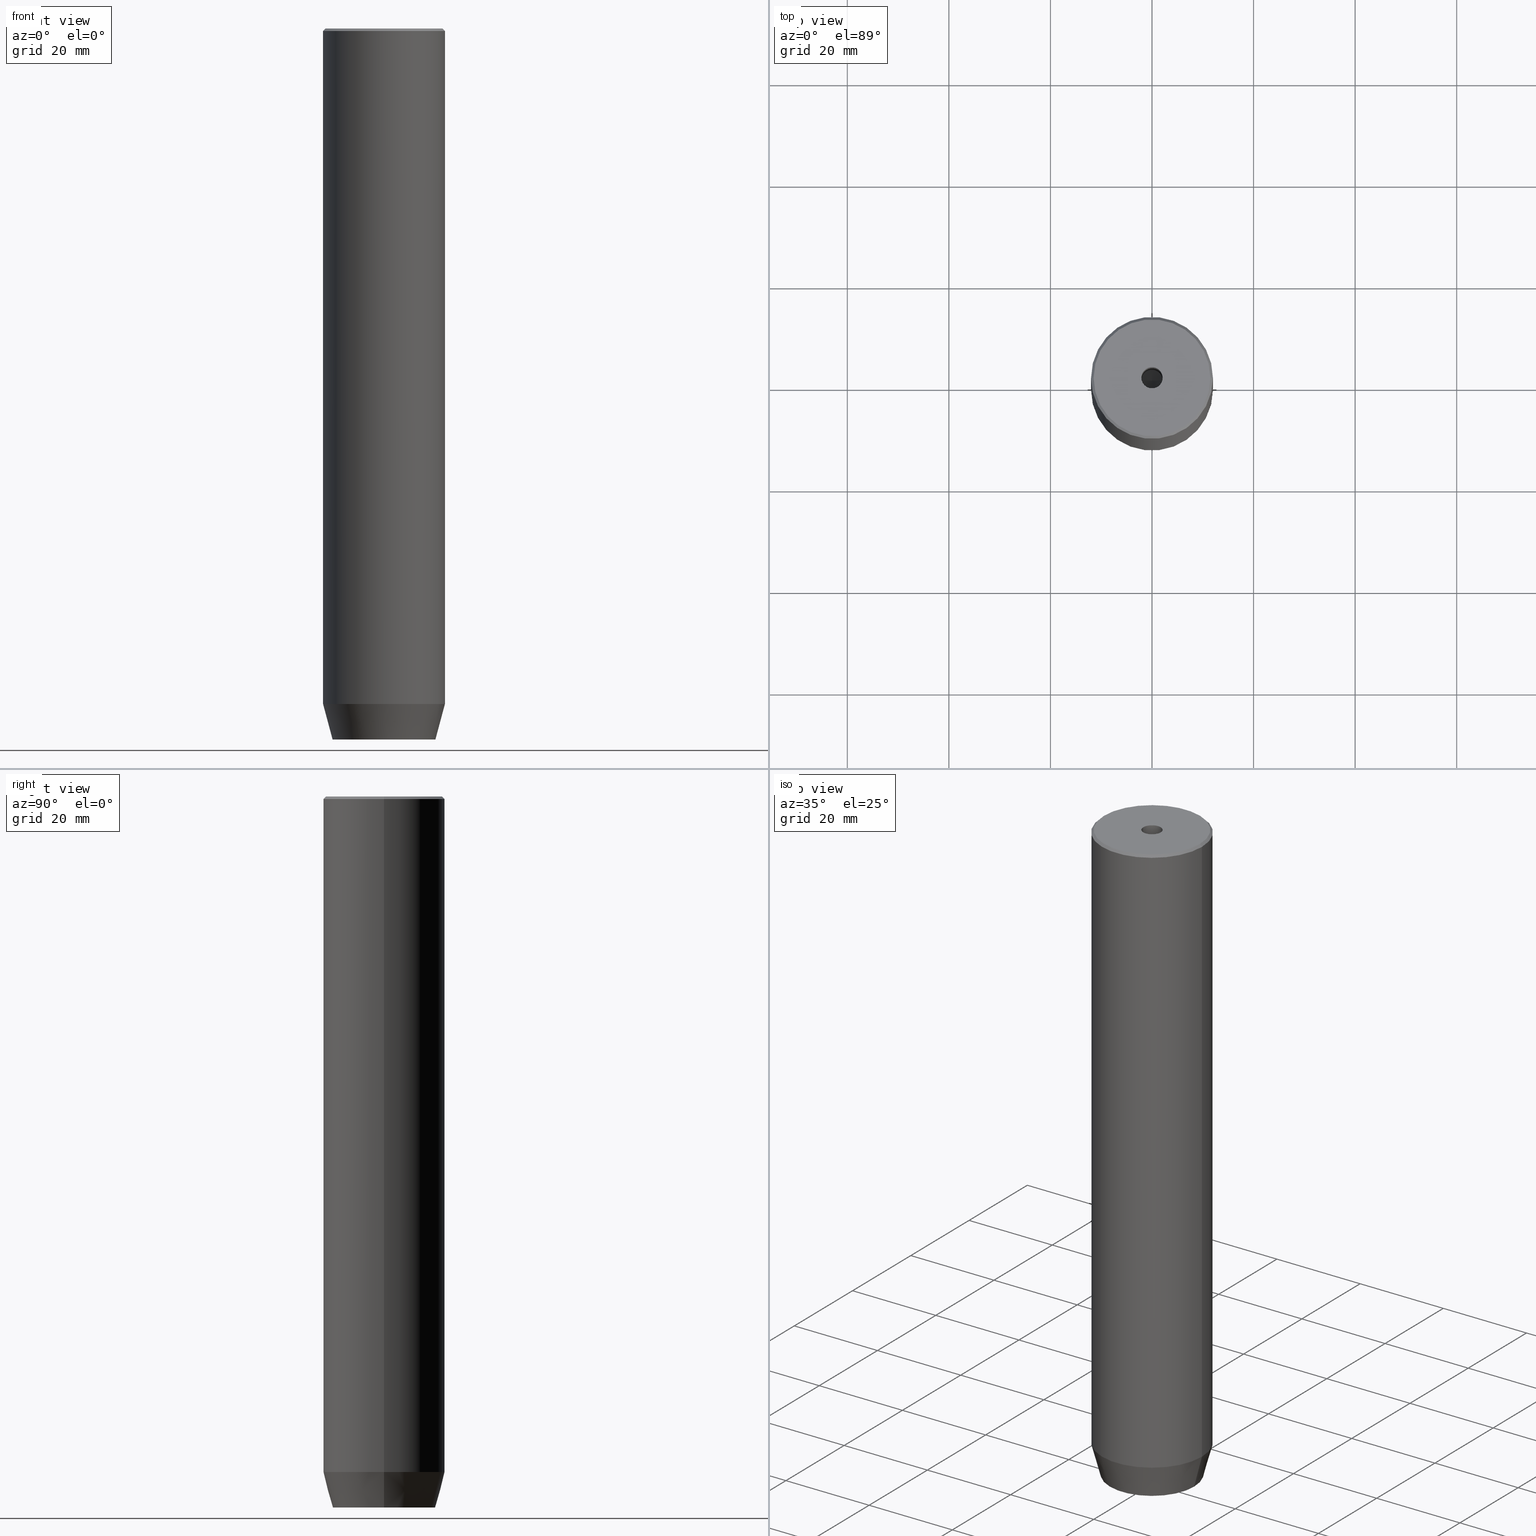
[diagram: canonical four-view strip — front | top / right | iso, engineering-drawing reading convention]
A machine part, canonical four-view strip (front | top / right | iso — engineering-drawing reading convention). The complete STEP part file that produces these views, byte-faithful:
ISO-10303-21;
HEADER;
FILE_DESCRIPTION (( 'STEP AP203' ),
    '1' );
FILE_NAME ('ad3d.STEP',
    '2024-01-02T17:15:39',
    ( '' ),
    ( '' ),
    'SwSTEP 2.0',
    'SolidWorks 2019',
    '' );
FILE_SCHEMA (( 'CONFIG_CONTROL_DESIGN' ));
ENDSEC;

DATA;
#1 =( NAMED_UNIT ( * ) PLANE_ANGLE_UNIT ( ) SI_UNIT ( $, .RADIAN. ) );
#2 = DIRECTION ( 'NONE',  ( 0.8660254037844387076, 0.5000000000000001110, 0.000000000000000000 ) ) ;
#3 = UNCERTAINTY_MEASURE_WITH_UNIT (LENGTH_MEASURE( 1.000000000000000082E-05 ), #266, 'distance_accuracy_value', 'NONE');
#4 = DATE_AND_TIME ( #491, #451 ) ;
#5 = CARTESIAN_POINT ( 'NONE',  ( 0.000000000000000000, 0.000000000000000000, 0.000000000000000000 ) ) ;
#6 = CYLINDRICAL_SURFACE ( 'NONE', #587, 2.099999999999996980 ) ;
#7 = EDGE_CURVE ( 'NONE', #310, #391, #514, .T. ) ;
#8 = VECTOR ( 'NONE', #570, 1000.000000000000000 ) ;
#9 = ORIENTED_EDGE ( 'NONE', *, *, #495, .F. ) ;
#10 = DIRECTION ( 'NONE',  ( 0.000000000000000000, 0.000000000000000000, -1.000000000000000000 ) ) ;
#11 = EDGE_CURVE ( 'NONE', #70, #80, #253, .T. ) ;
#12 = FACE_OUTER_BOUND ( 'NONE', #308, .T. ) ;
#13 = ORIENTED_EDGE ( 'NONE', *, *, #138, .T. ) ;
#14 = DIRECTION ( 'NONE',  ( -1.000000000000000000, 0.000000000000000000, 0.000000000000000000 ) ) ;
#15 = VECTOR ( 'NONE', #540, 1000.000000000000000 ) ;
#16 = CC_DESIGN_PERSON_AND_ORGANIZATION_ASSIGNMENT ( #270, #456, ( #109 ) ) ;
#17 = FACE_OUTER_BOUND ( 'NONE', #407, .T. ) ;
#18 = CARTESIAN_POINT ( 'NONE',  ( 12.00000000000000000, 0.000000000000000000, -0.5000000000000056621 ) ) ;
#19 = VERTEX_POINT ( 'NONE', #143 ) ;
#20 = DIRECTION ( 'NONE',  ( -0.000000000000000000, -0.000000000000000000, 1.000000000000000000 ) ) ;
#21 = DIRECTION ( 'NONE',  ( -0.8571673007021113344, 1.049727191138617463E-16, 0.5150380749100558209 ) ) ;
#22 = CIRCLE ( 'NONE', #196, 2.099999999999998757 ) ;
#23 = CARTESIAN_POINT ( 'NONE',  ( -4.000000000000000000, -2.309401076758503368, -137.2000000000000171 ) ) ;
#24 = VECTOR ( 'NONE', #299, 1000.000000000000114 ) ;
#25 = ADVANCED_FACE ( 'NONE', ( #45 ), #94, .T. ) ;
#26 = DIRECTION ( 'NONE',  ( 1.000000000000000000, 0.000000000000000000, 0.000000000000000000 ) ) ;
#27 = ORIENTED_EDGE ( 'NONE', *, *, #321, .F. ) ;
#28 = ORIENTED_EDGE ( 'NONE', *, *, #445, .F. ) ;
#29 = DIRECTION ( 'NONE',  ( -0.000000000000000000, -0.000000000000000000, -1.000000000000000000 ) ) ;
#30 = ORIENTED_EDGE ( 'NONE', *, *, #46, .T. ) ;
#31 = ORIENTED_EDGE ( 'NONE', *, *, #172, .F. ) ;
#32 = ORIENTED_EDGE ( 'NONE', *, *, #495, .T. ) ;
#33 = ADVANCED_FACE ( 'NONE', ( #329 ), #226, .F. ) ;
#34 = DIRECTION ( 'NONE',  ( 1.000000000000000000, 0.000000000000000000, 0.000000000000000000 ) ) ;
#35 = CARTESIAN_POINT ( 'NONE',  ( 0.000000000000000000, 0.000000000000000000, -1.990051048614449116E-16 ) ) ;
#36 = CARTESIAN_POINT ( 'NONE',  ( 11.49999999999999467, 1.438959988998139766E-15, 0.000000000000000000 ) ) ;
#37 = APPROVAL_DATE_TIME ( #578, #389 ) ;
#38 = DIRECTION ( 'NONE',  ( 1.000000000000000000, 0.000000000000000000, 0.000000000000000000 ) ) ;
#39 = CARTESIAN_POINT ( 'NONE',  ( -4.000000000000000000, 0.000000000000000000, -140.0000000000000000 ) ) ;
#40 = FACE_OUTER_BOUND ( 'NONE', #580, .T. ) ;
#41 = CARTESIAN_POINT ( 'NONE',  ( 2.000000000000000444, 3.464101615137754386, -140.0000000000000000 ) ) ;
#42 = DIRECTION ( 'NONE',  ( 0.5000000000000003331, -0.8660254037844385966, 0.000000000000000000 ) ) ;
#43 = ADVANCED_FACE ( 'NONE', ( #566 ), #509, .F. ) ;
#44 = LINE ( 'NONE', #180, #410 ) ;
#45 = FACE_OUTER_BOUND ( 'NONE', #326, .T. ) ;
#46 = EDGE_CURVE ( 'NONE', #250, #470, #100, .T. ) ;
#47 = DIRECTION ( 'NONE',  ( -1.000000000000000000, 0.000000000000000000, 0.000000000000000000 ) ) ;
#48 = AXIS2_PLACEMENT_3D ( 'NONE', #150, #274, #521 ) ;
#49 = APPROVAL_PERSON_ORGANIZATION ( #317, #389, #121 ) ;
#50 = CARTESIAN_POINT ( 'NONE',  ( -2.000000000000000888, -3.464101615137754386, -137.2000000000000171 ) ) ;
#51 = DIRECTION ( 'NONE',  ( 1.000000000000000000, 0.000000000000000000, 0.000000000000000000 ) ) ;
#52 = CARTESIAN_POINT ( 'NONE',  ( -4.000000000000000000, 2.309401076758503368, -137.2000000000000171 ) ) ;
#53 = CARTESIAN_POINT ( 'NONE',  ( 2.099999999999996980, 0.000000000000000000, 0.000000000000000000 ) ) ;
#54 = EDGE_LOOP ( 'NONE', ( #207, #30, #488, #436, #186, #429 ) ) ;
#55 = VECTOR ( 'NONE', #195, 1000.000000000000000 ) ;
#56 = PRODUCT_DEFINITION_FORMATION_WITH_SPECIFIED_SOURCE ( 'LIBOVOLN�', '', #213, .NOT_KNOWN. ) ;
#57 = CARTESIAN_POINT ( 'NONE',  ( -2.099999999999996980, 2.571758278209438013E-16, 0.000000000000000000 ) ) ;
#58 = DIRECTION ( 'NONE',  ( 1.000000000000000000, 0.000000000000000000, 0.000000000000000000 ) ) ;
#59 = EDGE_CURVE ( 'NONE', #313, #546, #572, .T. ) ;
#60 = CARTESIAN_POINT ( 'NONE',  ( -4.000000000000000000, 2.309401076758503368, -137.2000000000000171 ) ) ;
#61 = EDGE_CURVE ( 'NONE', #494, #375, #242, .T. ) ;
#62 = ORIENTED_EDGE ( 'NONE', *, *, #366, .F. ) ;
#63 = ADVANCED_BREP_SHAPE_REPRESENTATION ( 'ad3d', ( #114, #403 ), #468 ) ;
#64 = CIRCLE ( 'NONE', #211, 12.00000000000000000 ) ;
#65 = CARTESIAN_POINT ( 'NONE',  ( 0.000000000000000000, 0.000000000000000000, -30.00000000000000000 ) ) ;
#66 = EDGE_LOOP ( 'NONE', ( #9, #433, #343, #377 ) ) ;
#67 = CARTESIAN_POINT ( 'NONE',  ( 2.099999999999994760, 0.000000000000000000, -30.00000000000000000 ) ) ;
#68 = CC_DESIGN_DATE_AND_TIME_ASSIGNMENT ( #4, #79, ( #483 ) ) ;
#69 = CARTESIAN_POINT ( 'NONE',  ( 0.000000000000000000, 0.000000000000000000, -133.0000000000000000 ) ) ;
#70 = VERTEX_POINT ( 'NONE', #18 ) ;
#71 = ORIENTED_EDGE ( 'NONE', *, *, #513, .T. ) ;
#72 = AXIS2_PLACEMENT_3D ( 'NONE', #309, #396, #586 ) ;
#73 = CARTESIAN_POINT ( 'NONE',  ( 0.000000000000000000, 10.12435565298213547, -140.0000000000000000 ) ) ;
#74 = APPROVAL_PERSON_ORGANIZATION ( #498, #233, #285 ) ;
#75 = CARTESIAN_POINT ( 'NONE',  ( 4.000000000000000000, -2.309401076758502480, -140.0000000000000000 ) ) ;
#76 = CARTESIAN_POINT ( 'NONE',  ( -2.000000000000000000, 3.464101615137754830, -137.2000000000000171 ) ) ;
#77 = APPROVAL_ROLE ( '' ) ;
#78 = CARTESIAN_POINT ( 'NONE',  ( -2.099999999999994760, 2.571758278209435054E-16, -30.00000000000000000 ) ) ;
#79 = DATE_TIME_ROLE ( 'classification_date' ) ;
#80 = VERTEX_POINT ( 'NONE', #200 ) ;
#81 = DIRECTION ( 'NONE',  ( 1.000000000000000000, 0.000000000000000000, 0.000000000000000000 ) ) ;
#82 = AXIS2_PLACEMENT_3D ( 'NONE', #124, #223, #406 ) ;
#83 = CYLINDRICAL_SURFACE ( 'NONE', #104, 12.00000000000000000 ) ;
#84 = ORIENTED_EDGE ( 'NONE', *, *, #339, .F. ) ;
#85 = EDGE_CURVE ( 'NONE', #80, #70, #548, .T. ) ;
#86 = EDGE_CURVE ( 'NONE', #539, #352, #510, .T. ) ;
#87 = DIRECTION ( 'NONE',  ( 0.000000000000000000, -1.000000000000000000, 0.000000000000000000 ) ) ;
#88 = DIRECTION ( 'NONE',  ( -0.2588190451025213501, 3.169619151431772337E-17, 0.9659258262890680902 ) ) ;
#89 = VECTOR ( 'NONE', #432, 1000.000000000000000 ) ;
#90 = CARTESIAN_POINT ( 'NONE',  ( 0.000000000000000000, 0.000000000000000000, 0.000000000000000000 ) ) ;
#91 = COORDINATED_UNIVERSAL_TIME_OFFSET ( 1, 0, .AHEAD. ) ;
#92 = FACE_OUTER_BOUND ( 'NONE', #128, .T. ) ;
#93 = DIRECTION ( 'NONE',  ( 0.8660254037844387076, 0.5000000000000001110, 0.000000000000000000 ) ) ;
#94 = CONICAL_SURFACE ( 'NONE', #437, 12.00000000000000000, 0.2617993877991500740 ) ;
#95 = AXIS2_PLACEMENT_3D ( 'NONE', #568, #565, #58 ) ;
#96 = CARTESIAN_POINT ( 'NONE',  ( -2.000000000000000888, -3.464101615137754386, -137.2000000000000171 ) ) ;
#97 = ADVANCED_FACE ( 'NONE', ( #447 ), #217, .F. ) ;
#98 = CYLINDRICAL_SURFACE ( 'NONE', #393, 12.00000000000000000 ) ;
#99 = ORIENTED_EDGE ( 'NONE', *, *, #185, .T. ) ;
#100 = LINE ( 'NONE', #293, #556 ) ;
#101 = DIRECTION ( 'NONE',  ( 0.8571673007021113344, 0.000000000000000000, 0.5150380749100558209 ) ) ;
#102 = ORIENTED_EDGE ( 'NONE', *, *, #126, .T. ) ;
#103 = DIRECTION ( 'NONE',  ( 0.000000000000000000, 1.000000000000000000, 0.000000000000000000 ) ) ;
#104 = AXIS2_PLACEMENT_3D ( 'NONE', #119, #306, #482 ) ;
#105 = AXIS2_PLACEMENT_3D ( 'NONE', #90, #142, #47 ) ;
#106 = VERTEX_POINT ( 'NONE', #365 ) ;
#107 = LINE ( 'NONE', #427, #24 ) ;
#108 = LOCAL_TIME ( 18, 15, 39.00000000000000000, #307 ) ;
#109 = PRODUCT_DEFINITION ( 'NEZN�M�', '', #56, #320 ) ;
#110 = VERTEX_POINT ( 'NONE', #440 ) ;
#111 = DIRECTION ( 'NONE',  ( 0.000000000000000000, 0.000000000000000000, -1.000000000000000000 ) ) ;
#112 = PLANE ( 'NONE',  #450 ) ;
#113 = ORIENTED_EDGE ( 'NONE', *, *, #422, .F. ) ;
#114 = MANIFOLD_SOLID_BREP ( 'Vrt�k z�vitn�ku pro M5 z�vit1', #425 ) ;
#115 = ORIENTED_EDGE ( 'NONE', *, *, #238, .F. ) ;
#116 = ORIENTED_EDGE ( 'NONE', *, *, #564, .F. ) ;
#117 = PERSON_AND_ORGANIZATION_ROLE ( 'creator' ) ;
#118 = EDGE_LOOP ( 'NONE', ( #462, #526, #507, #573 ) ) ;
#119 = CARTESIAN_POINT ( 'NONE',  ( 0.000000000000000000, 0.000000000000000000, 0.000000000000000000 ) ) ;
#120 = ORIENTED_EDGE ( 'NONE', *, *, #216, .F. ) ;
#121 = APPROVAL_ROLE ( '' ) ;
#122 = EDGE_CURVE ( 'NONE', #110, #399, #225, .T. ) ;
#123 = AXIS2_PLACEMENT_3D ( 'NONE', #231, #14, #376 ) ;
#124 = CARTESIAN_POINT ( 'NONE',  ( 0.000000000000000000, 0.000000000000000000, -30.00000000000000000 ) ) ;
#125 = ORIENTED_EDGE ( 'NONE', *, *, #61, .T. ) ;
#126 = EDGE_CURVE ( 'NONE', #399, #173, #405, .T. ) ;
#127 = PRODUCT_RELATED_PRODUCT_CATEGORY ( 'detail', '', ( #213 ) ) ;
#128 = EDGE_LOOP ( 'NONE', ( #269, #442, #584, #171 ) ) ;
#129 = PERSON_AND_ORGANIZATION ( #247, #331 ) ;
#130 = DIRECTION ( 'NONE',  ( -0.7071067811865474617, 0.000000000000000000, -0.7071067811865474617 ) ) ;
#131 =( NAMED_UNIT ( * ) SI_UNIT ( $, .STERADIAN. ) SOLID_ANGLE_UNIT ( ) );
#132 = ORIENTED_EDGE ( 'NONE', *, *, #505, .F. ) ;
#133 = CARTESIAN_POINT ( 'NONE',  ( -2.000000000000000000, 3.464101615137754830, -137.2000000000000171 ) ) ;
#134 = DATE_AND_TIME ( #360, #576 ) ;
#135 = AXIS2_PLACEMENT_3D ( 'NONE', #188, #547, #400 ) ;
#136 = FACE_OUTER_BOUND ( 'NONE', #118, .T. ) ;
#137 = CIRCLE ( 'NONE', #529, 2.099999999999994760 ) ;
#138 = EDGE_CURVE ( 'NONE', #356, #19, #187, .T. ) ;
#139 = ADVANCED_FACE ( 'NONE', ( #409 ), #6, .F. ) ;
#140 = FACE_OUTER_BOUND ( 'NONE', #54, .T. ) ;
#141 = CARTESIAN_POINT ( 'NONE',  ( 4.000000000000000000, 2.309401076758503368, -140.0000000000000000 ) ) ;
#142 = DIRECTION ( 'NONE',  ( 0.000000000000000000, 0.000000000000000000, -1.000000000000000000 ) ) ;
#143 = CARTESIAN_POINT ( 'NONE',  ( 10.12435565298213547, 0.000000000000000000, -140.0000000000000000 ) ) ;
#144 = VECTOR ( 'NONE', #218, 1000.000000000000000 ) ;
#145 = ORIENTED_EDGE ( 'NONE', *, *, #536, .F. ) ;
#146 = APPROVAL_PERSON_ORGANIZATION ( #452, #152, #77 ) ;
#147 = DIRECTION ( 'NONE',  ( 1.000000000000000000, 0.000000000000000000, 0.000000000000000000 ) ) ;
#148 = DIRECTION ( 'NONE',  ( 1.000000000000000000, 0.000000000000000000, 0.000000000000000000 ) ) ;
#149 = CARTESIAN_POINT ( 'NONE',  ( -12.00000000000000000, 1.469576158976823947E-15, 0.000000000000000000 ) ) ;
#150 = CARTESIAN_POINT ( 'NONE',  ( 4.000000000000000000, 0.000000000000000000, -137.2000000000000171 ) ) ;
#151 = EDGE_CURVE ( 'NONE', #19, #356, #402, .T. ) ;
#152 = APPROVAL ( #215, 'NEUR�EN�' ) ;
#153 = CIRCLE ( 'NONE', #135, 11.49999999999999467 ) ;
#154 = AXIS2_PLACEMENT_3D ( 'NONE', #5, #508, #148 ) ;
#155 = CC_DESIGN_SECURITY_CLASSIFICATION ( #483, ( #56 ) ) ;
#156 = ORIENTED_EDGE ( 'NONE', *, *, #304, .F. ) ;
#157 = LINE ( 'NONE', #67, #298 ) ;
#158 = CARTESIAN_POINT ( 'NONE',  ( 4.336808689942017736E-16, -4.618802153517006737, -140.0000000000000000 ) ) ;
#159 = ORIENTED_EDGE ( 'NONE', *, *, #46, .F. ) ;
#160 = CARTESIAN_POINT ( 'NONE',  ( -4.000000000000000000, 0.000000000000000000, -137.2000000000000171 ) ) ;
#161 = LINE ( 'NONE', #23, #517 ) ;
#162 = CARTESIAN_POINT ( 'NONE',  ( 4.336808689942017736E-16, -4.618802153517006737, -137.2000000000000171 ) ) ;
#163 = CARTESIAN_POINT ( 'NONE',  ( 0.000000000000000000, 0.000000000000000000, -0.5000000000000056621 ) ) ;
#164 = DIRECTION ( 'NONE',  ( 1.000000000000000000, 0.000000000000000000, 0.000000000000000000 ) ) ;
#165 = DIRECTION ( 'NONE',  ( 0.8660254037844385966, -0.5000000000000001110, 0.000000000000000000 ) ) ;
#166 = DIRECTION ( 'NONE',  ( 0.000000000000000000, 0.000000000000000000, -1.000000000000000000 ) ) ;
#167 = EDGE_LOOP ( 'NONE', ( #28, #560, #209, #264 ) ) ;
#168 = DIRECTION ( 'NONE',  ( 1.000000000000000000, 0.000000000000000000, 0.000000000000000000 ) ) ;
#169 = MECHANICAL_CONTEXT ( 'NONE', #284, 'mechanical' ) ;
#170 = CARTESIAN_POINT ( 'NONE',  ( 2.000000000000000888, -3.464101615137754386, -137.2000000000000171 ) ) ;
#171 = ORIENTED_EDGE ( 'NONE', *, *, #185, .F. ) ;
#172 = EDGE_CURVE ( 'NONE', #581, #173, #357, .T. ) ;
#173 = VERTEX_POINT ( 'NONE', #75 ) ;
#174 = ORIENTED_EDGE ( 'NONE', *, *, #193, .F. ) ;
#175 = AXIS2_PLACEMENT_3D ( 'NONE', #475, #435, #212 ) ;
#176 = SECURITY_CLASSIFICATION_LEVEL ( 'unclassified' ) ;
#177 = CARTESIAN_POINT ( 'NONE',  ( 12.00000000000000000, 0.000000000000000000, -133.0000000000000000 ) ) ;
#178 = ORIENTED_EDGE ( 'NONE', *, *, #85, .T. ) ;
#179 = ORIENTED_EDGE ( 'NONE', *, *, #122, .T. ) ;
#180 = CARTESIAN_POINT ( 'NONE',  ( -11.49999999999999467, 0.000000000000000000, 0.000000000000000000 ) ) ;
#181 = ORIENTED_EDGE ( 'NONE', *, *, #397, .T. ) ;
#182 = CARTESIAN_POINT ( 'NONE',  ( 0.000000000000000000, 0.000000000000000000, 0.000000000000000000 ) ) ;
#183 = DIRECTION ( 'NONE',  ( 0.000000000000000000, -1.000000000000000000, 0.000000000000000000 ) ) ;
#184 = DIRECTION ( 'NONE',  ( 1.000000000000000000, 0.000000000000000000, 0.000000000000000000 ) ) ;
#185 = EDGE_CURVE ( 'NONE', #292, #80, #44, .T. ) ;
#186 = ORIENTED_EDGE ( 'NONE', *, *, #505, .T. ) ;
#187 = CIRCLE ( 'NONE', #316, 10.12435565298213547 ) ;
#188 = CARTESIAN_POINT ( 'NONE',  ( 0.000000000000000000, 0.000000000000000000, 0.000000000000000000 ) ) ;
#189 = VECTOR ( 'NONE', #325, 1000.000000000000000 ) ;
#190 = CALENDAR_DATE ( 2024, 2, 1 ) ;
#191 = LINE ( 'NONE', #53, #189 ) ;
#192 = DIRECTION ( 'NONE',  ( -0.5000000000000003331, -0.8660254037844385966, 0.000000000000000000 ) ) ;
#193 = EDGE_CURVE ( 'NONE', #352, #250, #497, .T. ) ;
#194 = EDGE_CURVE ( 'NONE', #19, #494, #261, .T. ) ;
#195 = DIRECTION ( 'NONE',  ( -0.000000000000000000, -0.000000000000000000, 1.000000000000000000 ) ) ;
#196 = AXIS2_PLACEMENT_3D ( 'NONE', #263, #258, #81 ) ;
#197 = AXIS2_PLACEMENT_3D ( 'NONE', #73, #166, #349 ) ;
#198 = SHAPE_DEFINITION_REPRESENTATION ( #504, #63 ) ;
#199 = LINE ( 'NONE', #57, #575 ) ;
#200 = CARTESIAN_POINT ( 'NONE',  ( -12.00000000000000000, 1.469576158976823947E-15, -0.5000000000000056621 ) ) ;
#201 = EDGE_CURVE ( 'NONE', #106, #418, #318, .T. ) ;
#202 = LINE ( 'NONE', #552, #557 ) ;
#203 = PLANE ( 'NONE',  #95 ) ;
#204 = VECTOR ( 'NONE', #531, 1000.000000000000000 ) ;
#205 = CARTESIAN_POINT ( 'NONE',  ( -4.000000000000000000, -2.309401076758503368, -137.2000000000000171 ) ) ;
#206 = FACE_BOUND ( 'NONE', #582, .T. ) ;
#207 = ORIENTED_EDGE ( 'NONE', *, *, #193, .T. ) ;
#208 = CARTESIAN_POINT ( 'NONE',  ( 0.000000000000000000, 0.000000000000000000, 0.000000000000000000 ) ) ;
#209 = ORIENTED_EDGE ( 'NONE', *, *, #238, .T. ) ;
#210 = ORIENTED_EDGE ( 'NONE', *, *, #469, .T. ) ;
#211 = AXIS2_PLACEMENT_3D ( 'NONE', #506, #417, #147 ) ;
#212 = DIRECTION ( 'NONE',  ( 1.000000000000000000, 0.000000000000000000, 0.000000000000000000 ) ) ;
#213 = PRODUCT ( 'ad3d', 'ad3d', '', ( #169 ) ) ;
#214 = DIRECTION ( 'NONE',  ( -0.000000000000000000, -0.000000000000000000, 1.000000000000000000 ) ) ;
#215 = APPROVAL_STATUS ( 'not_yet_approved' ) ;
#216 = EDGE_CURVE ( 'NONE', #292, #246, #153, .T. ) ;
#217 = PLANE ( 'NONE',  #449 ) ;
#218 = DIRECTION ( 'NONE',  ( 0.8660254037844385966, -0.5000000000000001110, 0.000000000000000000 ) ) ;
#219 = APPLICATION_PROTOCOL_DEFINITION ( 'international standard', 'config_control_design', 1994, #284 ) ;
#220 = AXIS2_PLACEMENT_3D ( 'NONE', #65, #245, #26 ) ;
#221 = DIRECTION ( 'NONE',  ( -0.8660254037844385966, -0.4999999999999999445, 0.000000000000000000 ) ) ;
#222 = ORIENTED_EDGE ( 'NONE', *, *, #275, .T. ) ;
#223 = DIRECTION ( 'NONE',  ( -0.000000000000000000, -0.000000000000000000, 1.000000000000000000 ) ) ;
#224 = CARTESIAN_POINT ( 'NONE',  ( 0.000000000000000000, 0.000000000000000000, -133.0000000000000000 ) ) ;
#225 = LINE ( 'NONE', #41, #144 ) ;
#226 = CYLINDRICAL_SURFACE ( 'NONE', #502, 2.099999999999996980 ) ;
#227 = VERTEX_POINT ( 'NONE', #78 ) ;
#228 = CARTESIAN_POINT ( 'NONE',  ( 0.000000000000000000, 0.000000000000000000, -137.2000000000000171 ) ) ;
#229 = AXIS2_PLACEMENT_3D ( 'NONE', #281, #10, #464 ) ;
#230 = ORIENTED_EDGE ( 'NONE', *, *, #513, .F. ) ;
#231 = CARTESIAN_POINT ( 'NONE',  ( -4.000000000000000000, 0.000000000000000000, -137.2000000000000171 ) ) ;
#232 = ADVANCED_FACE ( 'NONE', ( #353 ), #83, .T. ) ;
#233 = APPROVAL ( #511, 'NEUR�EN�' ) ;
#234 = LINE ( 'NONE', #458, #382 ) ;
#235 = ORIENTED_EDGE ( 'NONE', *, *, #561, .T. ) ;
#236 = CARTESIAN_POINT ( 'NONE',  ( -4.000000000000000000, 2.309401076758503368, -140.0000000000000000 ) ) ;
#237 = DIRECTION ( 'NONE',  ( -0.000000000000000000, -0.000000000000000000, 1.000000000000000000 ) ) ;
#238 = EDGE_CURVE ( 'NONE', #391, #310, #22, .T. ) ;
#239 = DIRECTION ( 'NONE',  ( -0.000000000000000000, -0.000000000000000000, 1.000000000000000000 ) ) ;
#240 = FACE_OUTER_BOUND ( 'NONE', #534, .T. ) ;
#241 = FACE_OUTER_BOUND ( 'NONE', #280, .T. ) ;
#242 = CIRCLE ( 'NONE', #276, 12.00000000000000000 ) ;
#243 = AXIS2_PLACEMENT_3D ( 'NONE', #69, #251, #34 ) ;
#244 = ORIENTED_EDGE ( 'NONE', *, *, #441, .T. ) ;
#245 = DIRECTION ( 'NONE',  ( -0.000000000000000000, -0.000000000000000000, 1.000000000000000000 ) ) ;
#246 = VERTEX_POINT ( 'NONE', #36 ) ;
#247 = PERSON ( 'NEUR�EN�', 'NEUR�EN�', 'NEUR�EN�', ('NEUR�EN�'), ('NEUR�EN�'), ('NEUR�EN�') ) ;
#248 = CARTESIAN_POINT ( 'NONE',  ( 4.000000000000000000, 2.309401076758503368, -137.2000000000000171 ) ) ;
#249 = ORIENTED_EDGE ( 'NONE', *, *, #11, .F. ) ;
#250 = VERTEX_POINT ( 'NONE', #583 ) ;
#251 = DIRECTION ( 'NONE',  ( -0.000000000000000000, -0.000000000000000000, 1.000000000000000000 ) ) ;
#252 = ORIENTED_EDGE ( 'NONE', *, *, #408, .T. ) ;
#253 = CIRCLE ( 'NONE', #175, 12.00000000000000000 ) ;
#254 = CONICAL_SURFACE ( 'NONE', #229, 11.49999999999999467, 0.7853981633974482790 ) ;
#255 = ADVANCED_FACE ( 'NONE', ( #136 ), #543, .F. ) ;
#256 = CONICAL_SURFACE ( 'NONE', #220, 2.099999999999994760, 1.029744258676652535 ) ;
#257 = ADVANCED_FACE ( 'NONE', ( #453 ), #411, .F. ) ;
#258 = DIRECTION ( 'NONE',  ( -0.000000000000000000, -0.000000000000000000, 1.000000000000000000 ) ) ;
#259 = ORIENTED_EDGE ( 'NONE', *, *, #469, .F. ) ;
#260 = APPROVAL_STATUS ( 'not_yet_approved' ) ;
#261 = LINE ( 'NONE', #177, #15 ) ;
#262 = PERSON_AND_ORGANIZATION ( #247, #331 ) ;
#263 = CARTESIAN_POINT ( 'NONE',  ( 0.000000000000000000, 0.000000000000000000, -1.990051048614449116E-16 ) ) ;
#264 = ORIENTED_EDGE ( 'NONE', *, *, #408, .F. ) ;
#265 = VECTOR ( 'NONE', #87, 1000.000000000000000 ) ;
#266 =( LENGTH_UNIT ( ) NAMED_UNIT ( * ) SI_UNIT ( .MILLI., .METRE. ) );
#267 = VECTOR ( 'NONE', #21, 1000.000000000000000 ) ;
#268 = DIRECTION ( 'NONE',  ( 0.8660254037844384856, 0.5000000000000002220, 0.000000000000000000 ) ) ;
#269 = ORIENTED_EDGE ( 'NONE', *, *, #275, .F. ) ;
#270 = PERSON_AND_ORGANIZATION ( #247, #331 ) ;
#271 = CARTESIAN_POINT ( 'NONE',  ( 0.000000000000000000, 0.000000000000000000, -140.0000000000000000 ) ) ;
#272 = ORIENTED_EDGE ( 'NONE', *, *, #339, .T. ) ;
#273 = PLANE ( 'NONE',  #515 ) ;
#274 = DIRECTION ( 'NONE',  ( 1.000000000000000000, 0.000000000000000000, -0.000000000000000000 ) ) ;
#275 = EDGE_CURVE ( 'NONE', #246, #292, #288, .T. ) ;
#276 = AXIS2_PLACEMENT_3D ( 'NONE', #479, #237, #379 ) ;
#277 = CARTESIAN_POINT ( 'NONE',  ( 4.000000000000000000, 0.000000000000000000, -137.2000000000000171 ) ) ;
#278 = ORIENTED_EDGE ( 'NONE', *, *, #422, .T. ) ;
#279 = CARTESIAN_POINT ( 'NONE',  ( -11.49999999999999467, 0.000000000000000000, 0.000000000000000000 ) ) ;
#280 = EDGE_LOOP ( 'NONE', ( #179, #230, #159, #244 ) ) ;
#281 = CARTESIAN_POINT ( 'NONE',  ( 0.000000000000000000, 0.000000000000000000, 0.000000000000000000 ) ) ;
#282 = CC_DESIGN_PERSON_AND_ORGANIZATION_ASSIGNMENT ( #585, #311, ( #56 ) ) ;
#283 = EDGE_LOOP ( 'NONE', ( #102, #31, #550, #71 ) ) ;
#284 = APPLICATION_CONTEXT ( 'configuration controlled 3d designs of mechanical parts and assemblies' ) ;
#285 = APPROVAL_ROLE ( '' ) ;
#286 = ORIENTED_EDGE ( 'NONE', *, *, #323, .F. ) ;
#287 = CARTESIAN_POINT ( 'NONE',  ( 4.336808689942017736E-16, -4.618802153517006737, -137.2000000000000171 ) ) ;
#288 = CIRCLE ( 'NONE', #154, 11.49999999999999467 ) ;
#289 = CC_DESIGN_APPROVAL ( #233, ( #483 ) ) ;
#290 = FACE_OUTER_BOUND ( 'NONE', #303, .T. ) ;
#291 = FACE_OUTER_BOUND ( 'NONE', #371, .T. ) ;
#292 = VERTEX_POINT ( 'NONE', #279 ) ;
#293 = CARTESIAN_POINT ( 'NONE',  ( 2.000000000000000444, 3.464101615137754386, -137.2000000000000171 ) ) ;
#294 = ADVANCED_FACE ( 'NONE', ( #17 ), #273, .F. ) ;
#295 = CARTESIAN_POINT ( 'NONE',  ( -7.656934449090954900E-15, 0.000000000000000000, -31.26180729995787289 ) ) ;
#296 = AXIS2_PLACEMENT_3D ( 'NONE', #163, #111, #168 ) ;
#297 = ORIENTED_EDGE ( 'NONE', *, *, #216, .T. ) ;
#298 = VECTOR ( 'NONE', #101, 1000.000000000000000 ) ;
#299 = DIRECTION ( 'NONE',  ( -0.8660254037844384856, -0.5000000000000002220, 0.000000000000000000 ) ) ;
#300 = EDGE_LOOP ( 'NONE', ( #431, #210, #448 ) ) ;
#301 = LINE ( 'NONE', #341, #267 ) ;
#302 = EDGE_CURVE ( 'NONE', #227, #391, #199, .T. ) ;
#303 = EDGE_LOOP ( 'NONE', ( #84, #13, #476, #62 ) ) ;
#304 = EDGE_CURVE ( 'NONE', #494, #70, #416, .T. ) ;
#305 = CARTESIAN_POINT ( 'NONE',  ( 4.000000000000000000, -2.309401076758502480, -137.2000000000000171 ) ) ;
#306 = DIRECTION ( 'NONE',  ( -0.000000000000000000, -0.000000000000000000, 1.000000000000000000 ) ) ;
#307 = COORDINATED_UNIVERSAL_TIME_OFFSET ( 1, 0, .AHEAD. ) ;
#308 = EDGE_LOOP ( 'NONE', ( #286, #120, #99, #249 ) ) ;
#309 = CARTESIAN_POINT ( 'NONE',  ( 0.000000000000000000, 0.000000000000000000, -140.0000000000000000 ) ) ;
#310 = VERTEX_POINT ( 'NONE', #368 ) ;
#311 = PERSON_AND_ORGANIZATION_ROLE ( 'design_supplier' ) ;
#312 = DIRECTION ( 'NONE',  ( 1.000000000000000000, 0.000000000000000000, 0.000000000000000000 ) ) ;
#313 = VERTEX_POINT ( 'NONE', #287 ) ;
#314 = COORDINATED_UNIVERSAL_TIME_OFFSET ( 1, 0, .AHEAD. ) ;
#315 = DIRECTION ( 'NONE',  ( -0.5000000000000000000, 0.8660254037844387076, 0.000000000000000000 ) ) ;
#316 = AXIS2_PLACEMENT_3D ( 'NONE', #271, #538, #359 ) ;
#317 = PERSON_AND_ORGANIZATION ( #247, #331 ) ;
#318 = LINE ( 'NONE', #39, #459 ) ;
#319 = DIRECTION ( 'NONE',  ( -0.000000000000000000, -0.000000000000000000, 1.000000000000000000 ) ) ;
#320 = DESIGN_CONTEXT ( 'detailed design', #532, 'design' ) ;
#321 = EDGE_CURVE ( 'NONE', #523, #227, #137, .T. ) ;
#322 = PLANE ( 'NONE',  #372 ) ;
#323 = EDGE_CURVE ( 'NONE', #246, #70, #202, .T. ) ;
#324 = CC_DESIGN_PERSON_AND_ORGANIZATION_ASSIGNMENT ( #545, #394, ( #213 ) ) ;
#325 = DIRECTION ( 'NONE',  ( -0.000000000000000000, -0.000000000000000000, 1.000000000000000000 ) ) ;
#326 = EDGE_LOOP ( 'NONE', ( #465, #272, #455, #518 ) ) ;
#327 = VECTOR ( 'NONE', #103, 1000.000000000000000 ) ;
#328 = DIRECTION ( 'NONE',  ( 0.000000000000000000, 0.000000000000000000, -1.000000000000000000 ) ) ;
#329 = FACE_OUTER_BOUND ( 'NONE', #490, .T. ) ;
#330 = CONICAL_SURFACE ( 'NONE', #105, 11.49999999999999467, 0.7853981633974482790 ) ;
#331 = ORGANIZATION ( 'NEUR�EN�', 'NEUR�EN�', '' ) ;
#332 = ORIENTED_EDGE ( 'NONE', *, *, #454, .T. ) ;
#333 = DIRECTION ( 'NONE',  ( -0.8660254037844384856, 0.5000000000000002220, 0.000000000000000000 ) ) ;
#334 = ADVANCED_FACE ( 'NONE', ( #12 ), #330, .T. ) ;
#335 = CARTESIAN_POINT ( 'NONE',  ( -12.00000000000000000, 1.469576158976823947E-15, -133.0000000000000000 ) ) ;
#336 = CARTESIAN_POINT ( 'NONE',  ( 12.00000000000000000, 0.000000000000000000, -133.0000000000000000 ) ) ;
#337 = CC_DESIGN_APPROVAL ( #389, ( #56 ) ) ;
#338 = LINE ( 'NONE', #96, #412 ) ;
#339 = EDGE_CURVE ( 'NONE', #356, #375, #234, .T. ) ;
#340 = CC_DESIGN_PERSON_AND_ORGANIZATION_ASSIGNMENT ( #262, #355, ( #483 ) ) ;
#341 = CARTESIAN_POINT ( 'NONE',  ( -2.099999999999994760, 2.571758278209435054E-16, -30.00000000000000000 ) ) ;
#342 = ORIENTED_EDGE ( 'NONE', *, *, #59, .T. ) ;
#343 = ORIENTED_EDGE ( 'NONE', *, *, #304, .T. ) ;
#344 = EDGE_LOOP ( 'NONE', ( #259, #235, #361 ) ) ;
#345 = CARTESIAN_POINT ( 'NONE',  ( 2.000000000000000444, 3.464101615137754386, -137.2000000000000171 ) ) ;
#346 = CARTESIAN_POINT ( 'NONE',  ( 2.000000000000000888, -3.464101615137754386, -137.2000000000000171 ) ) ;
#347 = ADVANCED_FACE ( 'NONE', ( #140 ), #322, .T. ) ;
#348 = EDGE_CURVE ( 'NONE', #470, #581, #373, .T. ) ;
#349 = DIRECTION ( 'NONE',  ( -1.000000000000000000, 0.000000000000000000, -0.000000000000000000 ) ) ;
#350 = EDGE_LOOP ( 'NONE', ( #385, #116, #571, #332 ) ) ;
#351 = COORDINATED_UNIVERSAL_TIME_OFFSET ( 1, 0, .AHEAD. ) ;
#352 = VERTEX_POINT ( 'NONE', #52 ) ;
#353 = FACE_OUTER_BOUND ( 'NONE', #66, .T. ) ;
#354 = VECTOR ( 'NONE', #93, 999.9999999999998863 ) ;
#355 = PERSON_AND_ORGANIZATION_ROLE ( 'classification_officer' ) ;
#356 = VERTEX_POINT ( 'NONE', #461 ) ;
#357 = LINE ( 'NONE', #492, #527 ) ;
#358 = APPLICATION_PROTOCOL_DEFINITION ( 'international standard', 'config_control_design', 1994, #532 ) ;
#359 = DIRECTION ( 'NONE',  ( 1.000000000000000000, 0.000000000000000000, 0.000000000000000000 ) ) ;
#360 = CALENDAR_DATE ( 2024, 2, 1 ) ;
#361 = ORIENTED_EDGE ( 'NONE', *, *, #445, .T. ) ;
#362 = DIRECTION ( 'NONE',  ( -0.000000000000000000, -0.000000000000000000, -1.000000000000000000 ) ) ;
#363 = AXIS2_PLACEMENT_3D ( 'NONE', #35, #214, #38 ) ;
#364 = DATE_AND_TIME ( #190, #530 ) ;
#365 = CARTESIAN_POINT ( 'NONE',  ( -4.000000000000000000, -2.309401076758503368, -140.0000000000000000 ) ) ;
#366 = EDGE_CURVE ( 'NONE', #375, #494, #64, .T. ) ;
#367 = CC_DESIGN_PERSON_AND_ORGANIZATION_ASSIGNMENT ( #129, #117, ( #56 ) ) ;
#368 = CARTESIAN_POINT ( 'NONE',  ( 2.099999999999998757, 0.000000000000000000, -1.990051048614449116E-16 ) ) ;
#369 = DIRECTION ( 'NONE',  ( 0.8660254037844384856, -0.5000000000000002220, 0.000000000000000000 ) ) ;
#370 = ORIENTED_EDGE ( 'NONE', *, *, #126, .F. ) ;
#371 = EDGE_LOOP ( 'NONE', ( #297, #222 ) ) ;
#372 = AXIS2_PLACEMENT_3D ( 'NONE', #228, #328, #499 ) ;
#373 = LINE ( 'NONE', #277, #265 ) ;
#374 = CIRCLE ( 'NONE', #551, 2.099999999999994760 ) ;
#375 = VERTEX_POINT ( 'NONE', #335 ) ;
#376 = DIRECTION ( 'NONE',  ( 0.000000000000000000, 0.000000000000000000, 1.000000000000000000 ) ) ;
#377 = ORIENTED_EDGE ( 'NONE', *, *, #11, .T. ) ;
#378 = LINE ( 'NONE', #567, #426 ) ;
#379 = DIRECTION ( 'NONE',  ( 1.000000000000000000, 0.000000000000000000, 0.000000000000000000 ) ) ;
#380 = LINE ( 'NONE', #346, #420 ) ;
#381 = VECTOR ( 'NONE', #183, 1000.000000000000000 ) ;
#382 = VECTOR ( 'NONE', #88, 1000.000000000000000 ) ;
#383 = ADVANCED_FACE ( 'NONE', ( #463 ), #512, .F. ) ;
#384 = DIRECTION ( 'NONE',  ( -0.8660254037844385966, 0.5000000000000001110, 0.000000000000000000 ) ) ;
#385 = ORIENTED_EDGE ( 'NONE', *, *, #201, .T. ) ;
#386 = CARTESIAN_POINT ( 'NONE',  ( 0.000000000000000000, 0.000000000000000000, -30.00000000000000000 ) ) ;
#387 = ORIENTED_EDGE ( 'NONE', *, *, #397, .F. ) ;
#388 = EDGE_LOOP ( 'NONE', ( #278, #473, #174, #544 ) ) ;
#389 = APPROVAL ( #260, 'NEUR�EN�' ) ;
#390 = CARTESIAN_POINT ( 'NONE',  ( 4.000000000000000000, 2.309401076758503368, -137.2000000000000171 ) ) ;
#391 = VERTEX_POINT ( 'NONE', #413 ) ;
#392 = VECTOR ( 'NONE', #2, 999.9999999999998863 ) ;
#393 = AXIS2_PLACEMENT_3D ( 'NONE', #208, #478, #423 ) ;
#394 = PERSON_AND_ORGANIZATION_ROLE ( 'design_owner' ) ;
#395 = COORDINATED_UNIVERSAL_TIME_OFFSET ( 1, 0, .AHEAD. ) ;
#396 = DIRECTION ( 'NONE',  ( -0.000000000000000000, -0.000000000000000000, 1.000000000000000000 ) ) ;
#397 = EDGE_CURVE ( 'NONE', #546, #106, #559, .T. ) ;
#398 = CALENDAR_DATE ( 2024, 2, 1 ) ;
#399 = VERTEX_POINT ( 'NONE', #141 ) ;
#400 = DIRECTION ( 'NONE',  ( 1.000000000000000000, 0.000000000000000000, 0.000000000000000000 ) ) ;
#401 = ADVANCED_FACE ( 'NONE', ( #92 ), #254, .T. ) ;
#402 = CIRCLE ( 'NONE', #72, 10.12435565298213547 ) ;
#403 = AXIS2_PLACEMENT_3D ( 'NONE', #182, #439, #404 ) ;
#404 = DIRECTION ( 'NONE',  ( 1.000000000000000000, 0.000000000000000000, 0.000000000000000000 ) ) ;
#405 = LINE ( 'NONE', #457, #381 ) ;
#406 = DIRECTION ( 'NONE',  ( 1.000000000000000000, 0.000000000000000000, 0.000000000000000000 ) ) ;
#407 = EDGE_LOOP ( 'NONE', ( #181, #484, #132, #342 ) ) ;
#408 = EDGE_CURVE ( 'NONE', #523, #310, #191, .T. ) ;
#409 = FACE_OUTER_BOUND ( 'NONE', #167, .T. ) ;
#410 = VECTOR ( 'NONE', #130, 1000.000000000000114 ) ;
#411 = CONICAL_SURFACE ( 'NONE', #82, 2.099999999999994760, 1.029744258676652535 ) ;
#412 = VECTOR ( 'NONE', #471, 1000.000000000000114 ) ;
#413 = CARTESIAN_POINT ( 'NONE',  ( -2.099999999999998757, 2.571758278209440478E-16, -1.990051048614449116E-16 ) ) ;
#414 = CARTESIAN_POINT ( 'NONE',  ( 0.000000000000000000, 0.000000000000000000, 0.000000000000000000 ) ) ;
#415 = APPROVAL_DATE_TIME ( #364, #233 ) ;
#416 = LINE ( 'NONE', #421, #55 ) ;
#417 = DIRECTION ( 'NONE',  ( -0.000000000000000000, -0.000000000000000000, 1.000000000000000000 ) ) ;
#418 = VERTEX_POINT ( 'NONE', #236 ) ;
#419 = CARTESIAN_POINT ( 'NONE',  ( -2.000000000000000888, -3.464101615137754386, -140.0000000000000000 ) ) ;
#420 = VECTOR ( 'NONE', #519, 1000.000000000000114 ) ;
#421 = CARTESIAN_POINT ( 'NONE',  ( 12.00000000000000000, 0.000000000000000000, 0.000000000000000000 ) ) ;
#422 = EDGE_CURVE ( 'NONE', #418, #110, #553, .T. ) ;
#423 = DIRECTION ( 'NONE',  ( 1.000000000000000000, 0.000000000000000000, 0.000000000000000000 ) ) ;
#424 = DIRECTION ( 'NONE',  ( -0.000000000000000000, -0.000000000000000000, 1.000000000000000000 ) ) ;
#425 = CLOSED_SHELL ( 'NONE', ( #139, #257, #401, #25, #533, #579, #485, #232, #428, #334, #97, #383, #294, #255, #43, #443, #347, #569, #33 ) ) ;
#426 = VECTOR ( 'NONE', #477, 1000.000000000000000 ) ;
#427 = CARTESIAN_POINT ( 'NONE',  ( 2.000000000000000888, -3.464101615137754386, -140.0000000000000000 ) ) ;
#428 = ADVANCED_FACE ( 'NONE', ( #290 ), #503, .T. ) ;
#429 = ORIENTED_EDGE ( 'NONE', *, *, #86, .T. ) ;
#430 = CARTESIAN_POINT ( 'NONE',  ( 2.099999999999994760, 0.000000000000000000, -30.00000000000000000 ) ) ;
#431 = ORIENTED_EDGE ( 'NONE', *, *, #561, .F. ) ;
#432 = DIRECTION ( 'NONE',  ( -0.000000000000000000, -0.000000000000000000, -1.000000000000000000 ) ) ;
#433 = ORIENTED_EDGE ( 'NONE', *, *, #366, .T. ) ;
#434 = DIRECTION ( 'NONE',  ( -0.000000000000000000, -0.000000000000000000, -1.000000000000000000 ) ) ;
#435 = DIRECTION ( 'NONE',  ( 0.000000000000000000, 0.000000000000000000, -1.000000000000000000 ) ) ;
#436 = ORIENTED_EDGE ( 'NONE', *, *, #554, .T. ) ;
#437 = AXIS2_PLACEMENT_3D ( 'NONE', #224, #319, #184 ) ;
#438 = LOCAL_TIME ( 18, 15, 39.00000000000000000, #395 ) ;
#439 = DIRECTION ( 'NONE',  ( 0.000000000000000000, 0.000000000000000000, 1.000000000000000000 ) ) ;
#440 = CARTESIAN_POINT ( 'NONE',  ( 0.000000000000000000, 4.618802153517006737, -140.0000000000000000 ) ) ;
#441 = EDGE_CURVE ( 'NONE', #250, #110, #378, .T. ) ;
#442 = ORIENTED_EDGE ( 'NONE', *, *, #323, .T. ) ;
#443 = ADVANCED_FACE ( 'NONE', ( #241 ), #112, .F. ) ;
#444 = DIRECTION ( 'NONE',  ( -0.000000000000000000, -0.000000000000000000, 1.000000000000000000 ) ) ;
#445 = EDGE_CURVE ( 'NONE', #227, #523, #374, .T. ) ;
#446 = ORIENTED_EDGE ( 'NONE', *, *, #302, .F. ) ;
#447 = FACE_OUTER_BOUND ( 'NONE', #388, .T. ) ;
#448 = ORIENTED_EDGE ( 'NONE', *, *, #321, .T. ) ;
#449 = AXIS2_PLACEMENT_3D ( 'NONE', #133, #315, #221 ) ;
#450 = AXIS2_PLACEMENT_3D ( 'NONE', #345, #574, #384 ) ;
#451 = LOCAL_TIME ( 18, 15, 39.00000000000000000, #314 ) ;
#452 = PERSON_AND_ORGANIZATION ( #247, #331 ) ;
#453 = FACE_OUTER_BOUND ( 'NONE', #344, .T. ) ;
#454 = EDGE_CURVE ( 'NONE', #539, #106, #161, .T. ) ;
#455 = ORIENTED_EDGE ( 'NONE', *, *, #61, .F. ) ;
#456 = PERSON_AND_ORGANIZATION_ROLE ( 'creator' ) ;
#457 = CARTESIAN_POINT ( 'NONE',  ( 4.000000000000000000, 0.000000000000000000, -140.0000000000000000 ) ) ;
#458 = CARTESIAN_POINT ( 'NONE',  ( -12.00000000000000000, 1.469576158976823947E-15, -133.0000000000000000 ) ) ;
#459 = VECTOR ( 'NONE', #489, 1000.000000000000000 ) ;
#460 = VECTOR ( 'NONE', #29, 1000.000000000000000 ) ;
#461 = CARTESIAN_POINT ( 'NONE',  ( -10.12435565298213547, 1.354726066681111050E-15, -140.0000000000000000 ) ) ;
#462 = ORIENTED_EDGE ( 'NONE', *, *, #536, .T. ) ;
#463 = FACE_OUTER_BOUND ( 'NONE', #350, .T. ) ;
#464 = DIRECTION ( 'NONE',  ( -1.000000000000000000, 0.000000000000000000, 0.000000000000000000 ) ) ;
#465 = ORIENTED_EDGE ( 'NONE', *, *, #151, .T. ) ;
#466 = AXIS2_PLACEMENT_3D ( 'NONE', #170, #42, #268 ) ;
#467 = CARTESIAN_POINT ( 'NONE',  ( 0.000000000000000000, 0.000000000000000000, -30.00000000000000000 ) ) ;
#468 =( GEOMETRIC_REPRESENTATION_CONTEXT ( 3 ) GLOBAL_UNCERTAINTY_ASSIGNED_CONTEXT ( ( #3 ) ) GLOBAL_UNIT_ASSIGNED_CONTEXT ( ( #266, #1, #131 ) ) REPRESENTATION_CONTEXT ( 'NONE', 'WORKASPACE' ) );
#469 = EDGE_CURVE ( 'NONE', #563, #523, #157, .T. ) ;
#470 = VERTEX_POINT ( 'NONE', #390 ) ;
#471 = DIRECTION ( 'NONE',  ( -0.8660254037844384856, 0.5000000000000002220, 0.000000000000000000 ) ) ;
#472 = LINE ( 'NONE', #60, #204 ) ;
#473 = ORIENTED_EDGE ( 'NONE', *, *, #441, .F. ) ;
#474 = FACE_OUTER_BOUND ( 'NONE', #300, .T. ) ;
#475 = CARTESIAN_POINT ( 'NONE',  ( 0.000000000000000000, 0.000000000000000000, -0.5000000000000056621 ) ) ;
#476 = ORIENTED_EDGE ( 'NONE', *, *, #194, .T. ) ;
#477 = DIRECTION ( 'NONE',  ( -0.000000000000000000, -0.000000000000000000, -1.000000000000000000 ) ) ;
#478 = DIRECTION ( 'NONE',  ( -0.000000000000000000, -0.000000000000000000, 1.000000000000000000 ) ) ;
#479 = CARTESIAN_POINT ( 'NONE',  ( 0.000000000000000000, 0.000000000000000000, -133.0000000000000000 ) ) ;
#480 = ORIENTED_EDGE ( 'NONE', *, *, #201, .F. ) ;
#481 = ORIENTED_EDGE ( 'NONE', *, *, #7, .T. ) ;
#482 = DIRECTION ( 'NONE',  ( 1.000000000000000000, 0.000000000000000000, 0.000000000000000000 ) ) ;
#483 = SECURITY_CLASSIFICATION ( '', '', #176 ) ;
#484 = ORIENTED_EDGE ( 'NONE', *, *, #454, .F. ) ;
#485 = ADVANCED_FACE ( 'NONE', ( #528, #291 ), #203, .T. ) ;
#486 = CARTESIAN_POINT ( 'NONE',  ( 0.000000000000000000, 0.000000000000000000, 0.000000000000000000 ) ) ;
#487 = PLANE ( 'NONE',  #197 ) ;
#488 = ORIENTED_EDGE ( 'NONE', *, *, #348, .T. ) ;
#489 = DIRECTION ( 'NONE',  ( 0.000000000000000000, 1.000000000000000000, 0.000000000000000000 ) ) ;
#490 = EDGE_LOOP ( 'NONE', ( #446, #27, #252, #481 ) ) ;
#491 = CALENDAR_DATE ( 2024, 2, 1 ) ;
#492 = CARTESIAN_POINT ( 'NONE',  ( 4.000000000000000000, -2.309401076758502480, -137.2000000000000171 ) ) ;
#493 = CC_DESIGN_DATE_AND_TIME_ASSIGNMENT ( #134, #537, ( #109 ) ) ;
#494 = VERTEX_POINT ( 'NONE', #336 ) ;
#495 = EDGE_CURVE ( 'NONE', #375, #80, #516, .T. ) ;
#496 = APPROVAL_DATE_TIME ( #542, #152 ) ;
#497 = LINE ( 'NONE', #76, #392 ) ;
#498 = PERSON_AND_ORGANIZATION ( #247, #331 ) ;
#499 = DIRECTION ( 'NONE',  ( -1.000000000000000000, 0.000000000000000000, -0.000000000000000000 ) ) ;
#500 = DIRECTION ( 'NONE',  ( 0.7071067811865474617, 8.659560562354932858E-17, -0.7071067811865474617 ) ) ;
#501 = DIRECTION ( 'NONE',  ( -0.000000000000000000, -0.000000000000000000, 1.000000000000000000 ) ) ;
#502 = AXIS2_PLACEMENT_3D ( 'NONE', #414, #501, #51 ) ;
#503 = CONICAL_SURFACE ( 'NONE', #243, 12.00000000000000000, 0.2617993877991500740 ) ;
#504 = PRODUCT_DEFINITION_SHAPE ( 'NONE', 'NONE',  #109 ) ;
#505 = EDGE_CURVE ( 'NONE', #313, #539, #338, .T. ) ;
#506 = CARTESIAN_POINT ( 'NONE',  ( 0.000000000000000000, 0.000000000000000000, -133.0000000000000000 ) ) ;
#507 = ORIENTED_EDGE ( 'NONE', *, *, #554, .F. ) ;
#508 = DIRECTION ( 'NONE',  ( -0.000000000000000000, -0.000000000000000000, 1.000000000000000000 ) ) ;
#509 = PLANE ( 'NONE',  #48 ) ;
#510 = LINE ( 'NONE', #160, #327 ) ;
#511 = APPROVAL_STATUS ( 'not_yet_approved' ) ;
#512 = PLANE ( 'NONE',  #123 ) ;
#513 = EDGE_CURVE ( 'NONE', #470, #399, #524, .T. ) ;
#514 = CIRCLE ( 'NONE', #363, 2.099999999999998757 ) ;
#515 = AXIS2_PLACEMENT_3D ( 'NONE', #50, #192, #369 ) ;
#516 = LINE ( 'NONE', #149, #8 ) ;
#517 = VECTOR ( 'NONE', #434, 1000.000000000000000 ) ;
#518 = ORIENTED_EDGE ( 'NONE', *, *, #194, .F. ) ;
#519 = DIRECTION ( 'NONE',  ( -0.8660254037844384856, -0.5000000000000002220, 0.000000000000000000 ) ) ;
#520 = ORIENTED_EDGE ( 'NONE', *, *, #138, .F. ) ;
#521 = DIRECTION ( 'NONE',  ( -0.000000000000000000, 0.000000000000000000, -1.000000000000000000 ) ) ;
#522 = ORIENTED_EDGE ( 'NONE', *, *, #151, .F. ) ;
#523 = VERTEX_POINT ( 'NONE', #430 ) ;
#524 = LINE ( 'NONE', #248, #460 ) ;
#525 = ORIENTED_EDGE ( 'NONE', *, *, #122, .F. ) ;
#526 = ORIENTED_EDGE ( 'NONE', *, *, #59, .F. ) ;
#527 = VECTOR ( 'NONE', #362, 1000.000000000000000 ) ;
#528 = FACE_BOUND ( 'NONE', #577, .T. ) ;
#529 = AXIS2_PLACEMENT_3D ( 'NONE', #467, #20, #555 ) ;
#530 = LOCAL_TIME ( 18, 15, 39.00000000000000000, #91 ) ;
#531 = DIRECTION ( 'NONE',  ( -0.000000000000000000, -0.000000000000000000, -1.000000000000000000 ) ) ;
#532 = APPLICATION_CONTEXT ( 'configuration controlled 3d designs of mechanical parts and assemblies' ) ;
#533 = ADVANCED_FACE ( 'NONE', ( #240 ), #98, .T. ) ;
#534 = EDGE_LOOP ( 'NONE', ( #125, #32, #178, #156 ) ) ;
#535 = CALENDAR_DATE ( 2024, 2, 1 ) ;
#536 = EDGE_CURVE ( 'NONE', #173, #546, #107, .T. ) ;
#537 = DATE_TIME_ROLE ( 'creation_date' ) ;
#538 = DIRECTION ( 'NONE',  ( -0.000000000000000000, -0.000000000000000000, 1.000000000000000000 ) ) ;
#539 = VERTEX_POINT ( 'NONE', #205 ) ;
#540 = DIRECTION ( 'NONE',  ( 0.2588190451025213501, 0.000000000000000000, 0.9659258262890680902 ) ) ;
#541 = ORIENTED_EDGE ( 'NONE', *, *, #7, .F. ) ;
#542 = DATE_AND_TIME ( #398, #438 ) ;
#543 = PLANE ( 'NONE',  #466 ) ;
#544 = ORIENTED_EDGE ( 'NONE', *, *, #564, .T. ) ;
#545 = PERSON_AND_ORGANIZATION ( #247, #331 ) ;
#546 = VERTEX_POINT ( 'NONE', #158 ) ;
#547 = DIRECTION ( 'NONE',  ( -0.000000000000000000, -0.000000000000000000, 1.000000000000000000 ) ) ;
#548 = CIRCLE ( 'NONE', #296, 12.00000000000000000 ) ;
#549 = VECTOR ( 'NONE', #333, 1000.000000000000114 ) ;
#550 = ORIENTED_EDGE ( 'NONE', *, *, #348, .F. ) ;
#551 = AXIS2_PLACEMENT_3D ( 'NONE', #386, #424, #164 ) ;
#552 = CARTESIAN_POINT ( 'NONE',  ( 11.49999999999999467, 1.408343819019455584E-15, 0.000000000000000000 ) ) ;
#553 = LINE ( 'NONE', #562, #354 ) ;
#554 = EDGE_CURVE ( 'NONE', #581, #313, #380, .T. ) ;
#555 = DIRECTION ( 'NONE',  ( 1.000000000000000000, 0.000000000000000000, 0.000000000000000000 ) ) ;
#556 = VECTOR ( 'NONE', #165, 1000.000000000000000 ) ;
#557 = VECTOR ( 'NONE', #500, 1000.000000000000114 ) ;
#558 = CC_DESIGN_APPROVAL ( #152, ( #109 ) ) ;
#559 = LINE ( 'NONE', #419, #549 ) ;
#560 = ORIENTED_EDGE ( 'NONE', *, *, #302, .T. ) ;
#561 = EDGE_CURVE ( 'NONE', #563, #227, #301, .T. ) ;
#562 = CARTESIAN_POINT ( 'NONE',  ( -2.000000000000000000, 3.464101615137754830, -140.0000000000000000 ) ) ;
#563 = VERTEX_POINT ( 'NONE', #295 ) ;
#564 = EDGE_CURVE ( 'NONE', #352, #418, #472, .T. ) ;
#565 = DIRECTION ( 'NONE',  ( 0.000000000000000000, -0.000000000000000000, 1.000000000000000000 ) ) ;
#566 = FACE_OUTER_BOUND ( 'NONE', #283, .T. ) ;
#567 = CARTESIAN_POINT ( 'NONE',  ( 0.000000000000000000, 4.618802153517006737, -137.2000000000000171 ) ) ;
#568 = CARTESIAN_POINT ( 'NONE',  ( 0.000000000000000000, 0.000000000000000000, 0.000000000000000000 ) ) ;
#569 = ADVANCED_FACE ( 'NONE', ( #474 ), #256, .F. ) ;
#570 = DIRECTION ( 'NONE',  ( -0.000000000000000000, -0.000000000000000000, 1.000000000000000000 ) ) ;
#571 = ORIENTED_EDGE ( 'NONE', *, *, #86, .F. ) ;
#572 = LINE ( 'NONE', #162, #89 ) ;
#573 = ORIENTED_EDGE ( 'NONE', *, *, #172, .T. ) ;
#574 = DIRECTION ( 'NONE',  ( 0.5000000000000001110, 0.8660254037844385966, -0.000000000000000000 ) ) ;
#575 = VECTOR ( 'NONE', #239, 1000.000000000000000 ) ;
#576 = LOCAL_TIME ( 18, 15, 39.00000000000000000, #351 ) ;
#577 = EDGE_LOOP ( 'NONE', ( #541, #115 ) ) ;
#578 = DATE_AND_TIME ( #535, #108 ) ;
#579 = ADVANCED_FACE ( 'NONE', ( #206, #40 ), #487, .T. ) ;
#580 = EDGE_LOOP ( 'NONE', ( #522, #520 ) ) ;
#581 = VERTEX_POINT ( 'NONE', #305 ) ;
#582 = EDGE_LOOP ( 'NONE', ( #113, #480, #387, #145, #370, #525 ) ) ;
#583 = CARTESIAN_POINT ( 'NONE',  ( 0.000000000000000000, 4.618802153517006737, -137.2000000000000171 ) ) ;
#584 = ORIENTED_EDGE ( 'NONE', *, *, #85, .F. ) ;
#585 = PERSON_AND_ORGANIZATION ( #247, #331 ) ;
#586 = DIRECTION ( 'NONE',  ( 1.000000000000000000, 0.000000000000000000, 0.000000000000000000 ) ) ;
#587 = AXIS2_PLACEMENT_3D ( 'NONE', #486, #444, #312 ) ;
ENDSEC;
END-ISO-10303-21;
